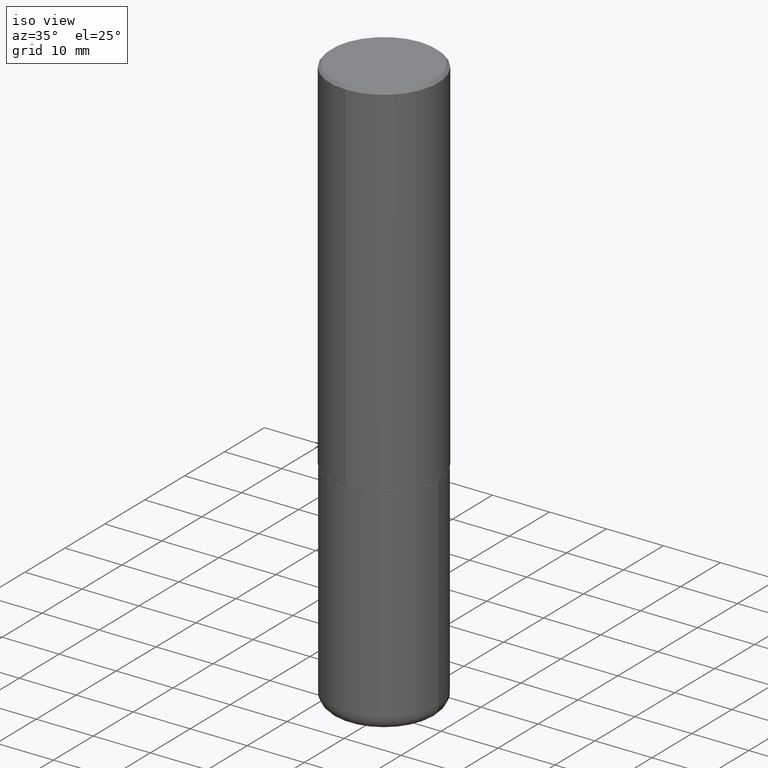
[diagram: clean part render]
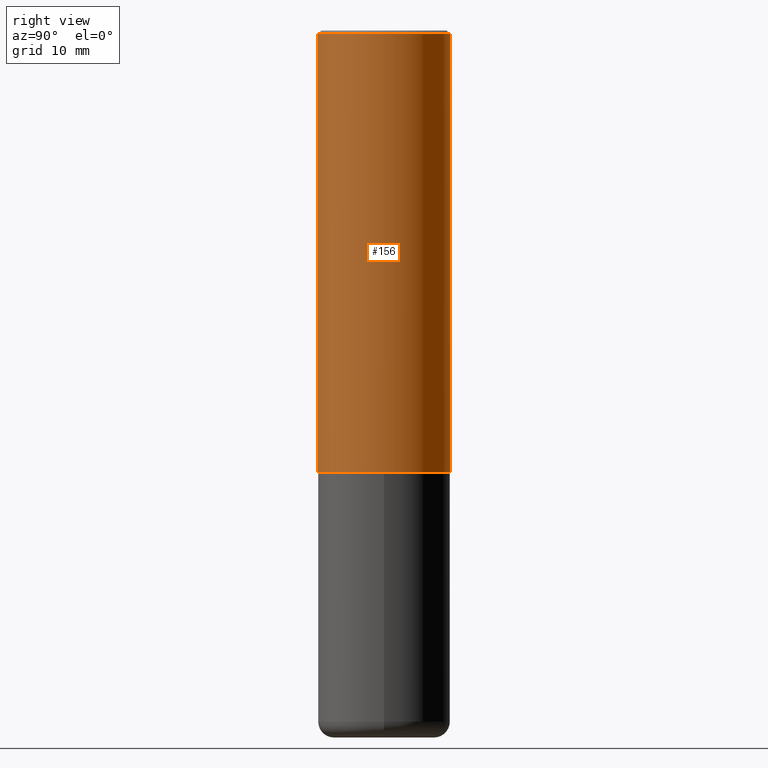
[diagram: tour spotlight — one face highlighted and labeled with its STEP entity id]
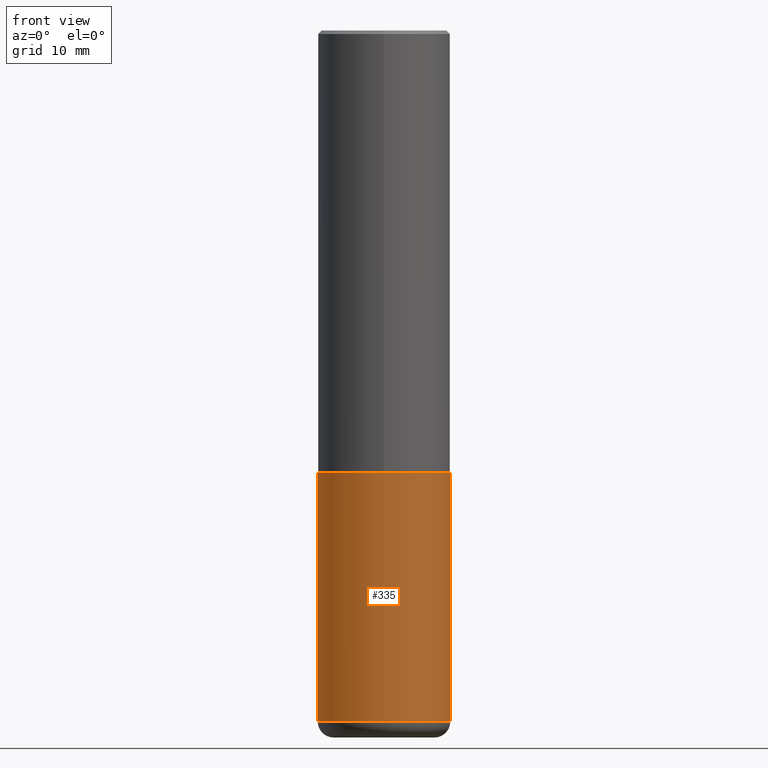
[diagram: tour spotlight — one face highlighted and labeled with its STEP entity id]
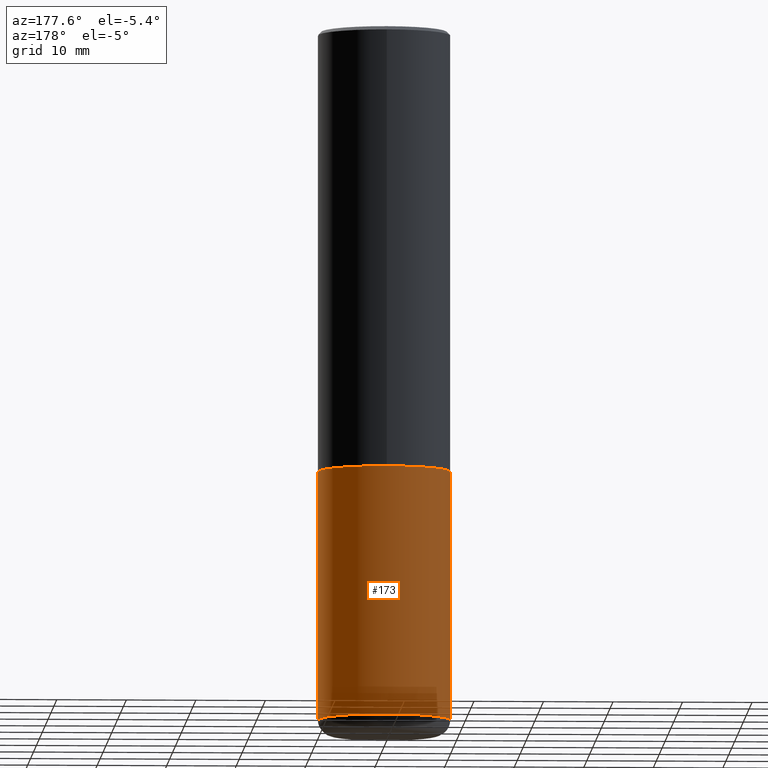
[diagram: tour spotlight — one face highlighted and labeled with its STEP entity id]
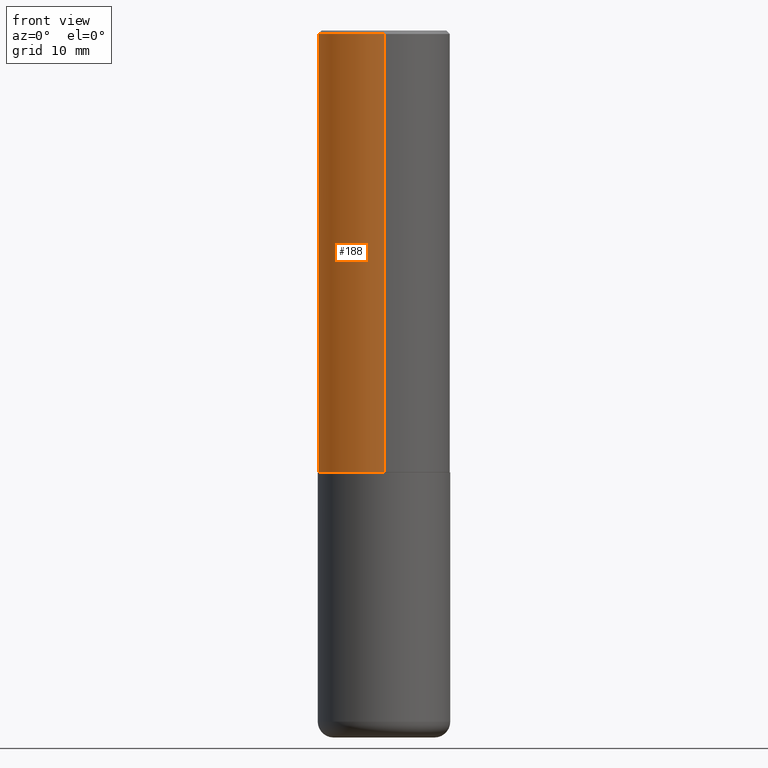
[diagram: tour spotlight — one face highlighted and labeled with its STEP entity id]
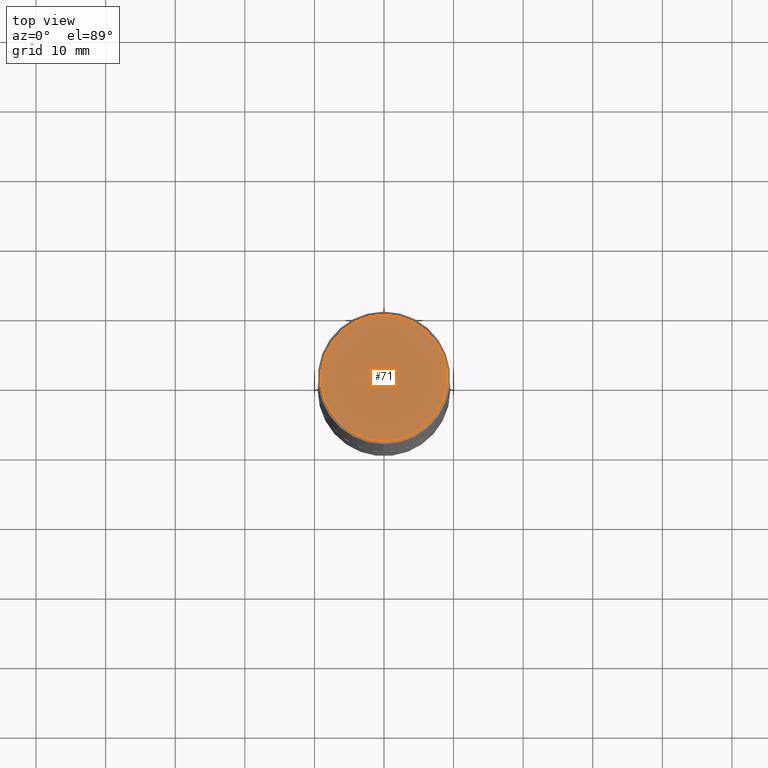
[diagram: tour spotlight — one face highlighted and labeled with its STEP entity id]
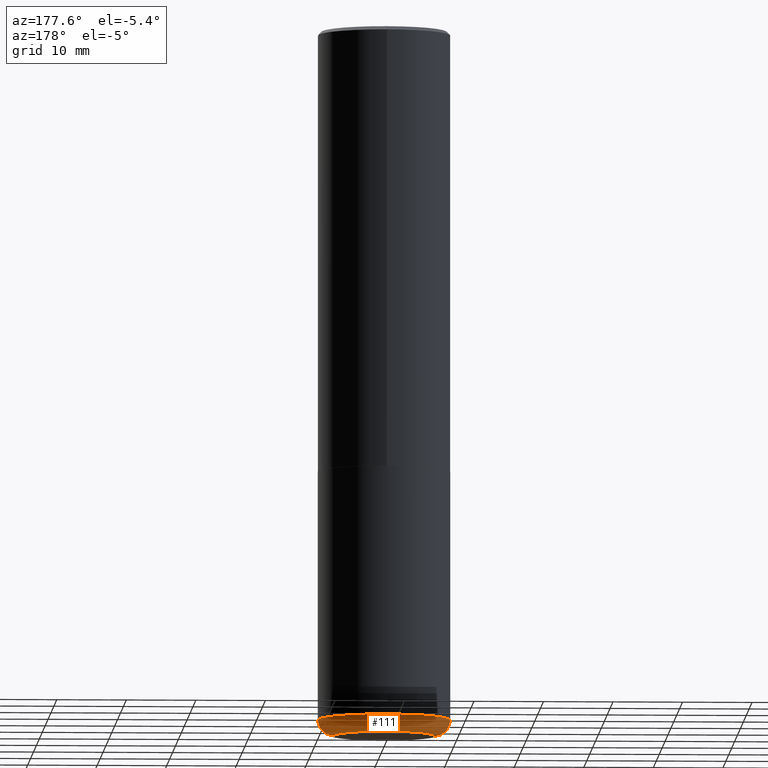
[diagram: tour spotlight — one face highlighted and labeled with its STEP entity id]
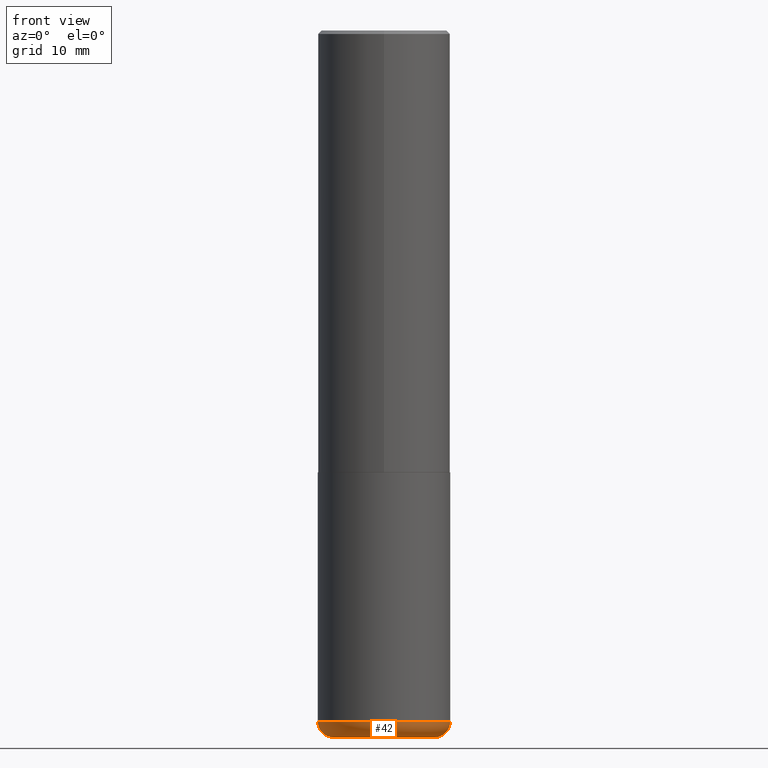
[diagram: tour spotlight — one face highlighted and labeled with its STEP entity id]
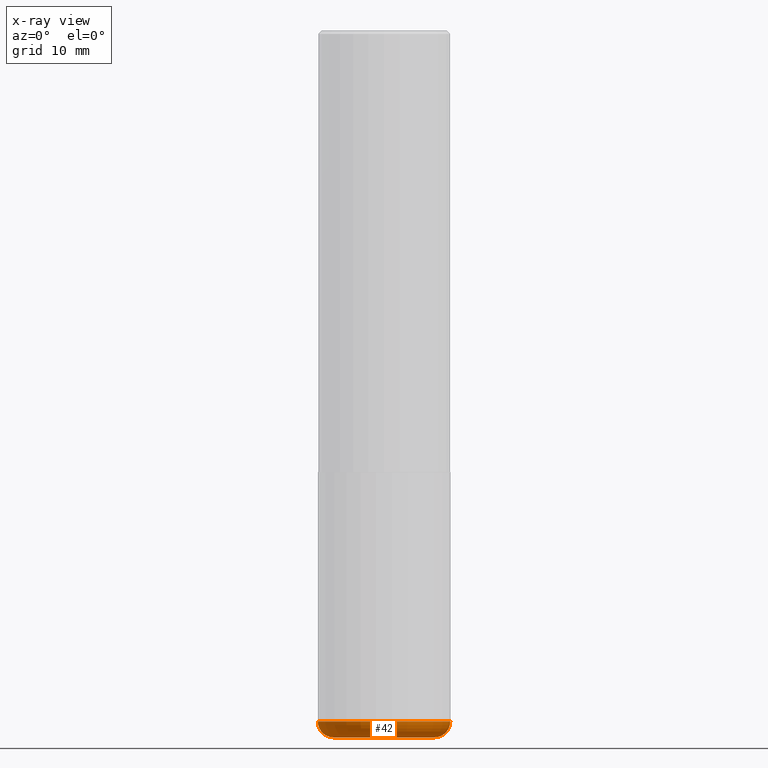
[diagram: x-ray of the same camera — body ghosted, this tour face saturated]
A machine part: a face-by-face anatomy tour. The part has 14 B-rep faces; the first image is the clean iso view, then the 7 largest visible faces are spotlighted one at a time (largest first), each with its STEP entity span.

Face 1 — right view, entity #156. In plain terms, the highlighted cylindrical surface (partial cylindrical patch) has radius 9.525 mm, axis along (-0, 0, 1).
Definition (entity closure, byte-faithful):
#11 = DIRECTION ( 'NONE',  ( -2.444465131706345255E-29, 3.492918657822378473E-15, 1.000000000000000000 ) ) ;
#33 = VERTEX_POINT ( 'NONE', #117 ) ;
#35 = ORIENTED_EDGE ( 'NONE', *, *, #244, .F. ) ;
#58 = ORIENTED_EDGE ( 'NONE', *, *, #360, .T. ) ;
#69 = CARTESIAN_POINT ( 'NONE',  ( -2.618611004132290852E-15, -0.3750000000000090483, -2.498999999999998778 ) ) ;
#72 = CIRCLE ( 'NONE', #132, 0.3750000000000000555 ) ;
#85 = EDGE_CURVE ( 'NONE', #206, #315, #267, .T. ) ;
#117 = CARTESIAN_POINT ( 'NONE',  ( -2.572686749164323547E-15, -0.3750000000000001110, -0.01999999999999877570 ) ) ;
#126 = CARTESIAN_POINT ( 'NONE',  ( 6.108718364134156127E-29, -8.728803725898123939E-15, -2.498999999999999666 ) ) ;
#132 = AXIS2_PLACEMENT_3D ( 'NONE', #296, #11, #327 ) ;
#134 = CYLINDRICAL_SURFACE ( 'NONE', #150, 0.3750000000000001665 ) ;
#138 = LINE ( 'NONE', #141, #183 ) ;
#141 = CARTESIAN_POINT ( 'NONE',  ( 2.664535259100376486E-15, 0.3750000000000001665, -1.309844496683392470E-15 ) ) ;
#150 = AXIS2_PLACEMENT_3D ( 'NONE', #226, #162, #164 ) ;
#156 = ADVANCED_FACE ( 'NONE', ( #397 ), #134, .T. ) ;
#160 = DIRECTION ( 'NONE',  ( -2.444465131706345255E-29, 3.492918657822378868E-15, 1.000000000000000000 ) ) ;
#162 = DIRECTION ( 'NONE',  ( -2.444465131706345255E-29, 3.492918657822378473E-15, 1.000000000000000000 ) ) ;
#164 = DIRECTION ( 'NONE',  ( -6.982962677686266711E-15, -1.000000000000000000, 3.492918657822378473E-15 ) ) ;
#179 = ORIENTED_EDGE ( 'NONE', *, *, #85, .T. ) ;
#181 = EDGE_CURVE ( 'NONE', #206, #33, #225, .T. ) ;
#183 = VECTOR ( 'NONE', #275, 39.37007874015748143 ) ;
#206 = VERTEX_POINT ( 'NONE', #69 ) ;
#209 = AXIS2_PLACEMENT_3D ( 'NONE', #126, #254, #382 ) ;
#225 = LINE ( 'NONE', #363, #346 ) ;
#226 = CARTESIAN_POINT ( 'NONE',  ( 0.000000000000000000, 0.000000000000000000, 0.000000000000000000 ) ) ;
#244 = EDGE_CURVE ( 'NONE', #33, #376, #72, .T. ) ;
#254 = DIRECTION ( 'NONE',  ( -2.444465131706345255E-29, 3.492918657822378473E-15, 1.000000000000000000 ) ) ;
#267 = CIRCLE ( 'NONE', #209, 0.3750000000000002776 ) ;
#272 = CARTESIAN_POINT ( 'NONE',  ( 2.618611004132350411E-15, 0.3749999999999999445, -0.02000000000000139513 ) ) ;
#275 = DIRECTION ( 'NONE',  ( -2.444465131706345255E-29, 3.492918657822378868E-15, 1.000000000000000000 ) ) ;
#277 = ORIENTED_EDGE ( 'NONE', *, *, #181, .F. ) ;
#296 = CARTESIAN_POINT ( 'NONE',  ( 4.888930263412711914E-31, -6.985837315644786578E-17, -0.02000000000000008715 ) ) ;
#312 = EDGE_LOOP ( 'NONE', ( #179, #58, #35, #277 ) ) ;
#315 = VERTEX_POINT ( 'NONE', #340 ) ;
#327 = DIRECTION ( 'NONE',  ( -6.982962677686265922E-15, -1.000000000000000000, 3.494488891895536035E-15 ) ) ;
#340 = CARTESIAN_POINT ( 'NONE',  ( 2.664535259100408040E-15, 0.3749999999999915623, -2.499000000000000998 ) ) ;
#346 = VECTOR ( 'NONE', #160, 39.37007874015748143 ) ;
#360 = EDGE_CURVE ( 'NONE', #315, #376, #138, .T. ) ;
#363 = CARTESIAN_POINT ( 'NONE',  ( -2.618611004132351200E-15, -0.3750000000000001665, 1.309844496683392470E-15 ) ) ;
#376 = VERTEX_POINT ( 'NONE', #272 ) ;
#382 = DIRECTION ( 'NONE',  ( -6.982962677686266711E-15, -1.000000000000000000, 2.913971193241878794E-15 ) ) ;
#397 = FACE_OUTER_BOUND ( 'NONE', #312, .T. ) ;

Face 2 — front view, entity #335. In plain terms, the highlighted cylindrical surface (partial cylindrical patch) has radius 9.525 mm, axis along (-0, 0, 1).
Definition (entity closure, byte-faithful):
#5 = CARTESIAN_POINT ( 'NONE',  ( 0.3750000000000000555, -1.134731435124021180E-14, -2.499999999999999556 ) ) ;
#9 = ORIENTED_EDGE ( 'NONE', *, *, #287, .F. ) ;
#18 = DIRECTION ( 'NONE',  ( -2.445468806185136877E-29, 3.491481338843145188E-15, 1.000000000000000000 ) ) ;
#21 = CYLINDRICAL_SURFACE ( 'NONE', #323, 0.3749999999999999445 ) ;
#37 = VERTEX_POINT ( 'NONE', #5 ) ;
#49 = CARTESIAN_POINT ( 'NONE',  ( 6.113672015462840371E-29, -8.728703347107863365E-15, -2.499999999999999556 ) ) ;
#55 = DIRECTION ( 'NONE',  ( 1.000000000000000000, -6.982962677686266711E-15, 4.876176775795935793E-29 ) ) ;
#67 = CIRCLE ( 'NONE', #347, 0.3749999999999999445 ) ;
#77 = EDGE_CURVE ( 'NONE', #170, #322, #67, .T. ) ;
#83 = CARTESIAN_POINT ( 'NONE',  ( 0.000000000000000000, 0.000000000000000000, 0.000000000000000000 ) ) ;
#105 = CARTESIAN_POINT ( 'NONE',  ( -0.3749999999999999445, -1.098715677577632652E-14, -3.910000000000000142 ) ) ;
#112 = DIRECTION ( 'NONE',  ( -2.445468806185136597E-29, 3.491481338843145583E-15, 1.000000000000000000 ) ) ;
#119 = DIRECTION ( 'NONE',  ( -2.445468806185136597E-29, 3.491481338843145583E-15, 1.000000000000000000 ) ) ;
#143 = LINE ( 'NONE', #167, #372 ) ;
#167 = CARTESIAN_POINT ( 'NONE',  ( -0.3749999999999999445, 2.664535259100375303E-15, -1.844600658845589318E-29 ) ) ;
#170 = VERTEX_POINT ( 'NONE', #105 ) ;
#171 = DIRECTION ( 'NONE',  ( -2.445468806185136877E-29, 3.491481338843145188E-15, 1.000000000000000000 ) ) ;
#204 = DIRECTION ( 'NONE',  ( 1.000000000000000000, -6.982962677686264344E-15, 0.000000000000000000 ) ) ;
#207 = DIRECTION ( 'NONE',  ( -2.445468806185136597E-29, 3.491481338843145583E-15, 1.000000000000000000 ) ) ;
#232 = ORIENTED_EDGE ( 'NONE', *, *, #77, .T. ) ;
#240 = ORIENTED_EDGE ( 'NONE', *, *, #276, .T. ) ;
#248 = DIRECTION ( 'NONE',  ( 1.000000000000000000, -6.982962677686263555E-15, 0.000000000000000000 ) ) ;
#270 = CARTESIAN_POINT ( 'NONE',  ( 0.3749999999999999445, -1.627030303900904751E-14, -3.910000000000000142 ) ) ;
#273 = ORIENTED_EDGE ( 'NONE', *, *, #302, .F. ) ;
#276 = EDGE_CURVE ( 'NONE', #322, #37, #364, .T. ) ;
#286 = CARTESIAN_POINT ( 'NONE',  ( 9.561783032183883600E-29, -1.365169203487670064E-14, -3.910000000000000142 ) ) ;
#287 = EDGE_CURVE ( 'NONE', #341, #37, #308, .T. ) ;
#291 = EDGE_LOOP ( 'NONE', ( #273, #232, #240, #9 ) ) ;
#302 = EDGE_CURVE ( 'NONE', #170, #341, #143, .T. ) ;
#304 = FACE_OUTER_BOUND ( 'NONE', #291, .T. ) ;
#308 = CIRCLE ( 'NONE', #385, 0.3750000000000000555 ) ;
#322 = VERTEX_POINT ( 'NONE', #270 ) ;
#323 = AXIS2_PLACEMENT_3D ( 'NONE', #83, #112, #55 ) ;
#331 = CARTESIAN_POINT ( 'NONE',  ( 0.3749999999999999445, -2.618611004132349622E-15, 1.828566290923475642E-29 ) ) ;
#335 = ADVANCED_FACE ( 'NONE', ( #304 ), #21, .T. ) ;
#341 = VERTEX_POINT ( 'NONE', #375 ) ;
#347 = AXIS2_PLACEMENT_3D ( 'NONE', #286, #119, #248 ) ;
#364 = LINE ( 'NONE', #331, #398 ) ;
#372 = VECTOR ( 'NONE', #171, 39.37007874015748143 ) ;
#375 = CARTESIAN_POINT ( 'NONE',  ( -0.3750000000000000555, -8.525662431891907096E-15, -2.499999999999999556 ) ) ;
#385 = AXIS2_PLACEMENT_3D ( 'NONE', #49, #207, #204 ) ;
#398 = VECTOR ( 'NONE', #18, 39.37007874015748143 ) ;

Face 3 — auxiliary view, entity #173. In plain terms, the highlighted cylindrical surface (partial cylindrical patch) has radius 9.525 mm, axis along (-0, 0, 1).
Definition (entity closure, byte-faithful):
#5 = CARTESIAN_POINT ( 'NONE',  ( 0.3750000000000000555, -1.134731435124021180E-14, -2.499999999999999556 ) ) ;
#14 = DIRECTION ( 'NONE',  ( 1.000000000000000000, -6.982962677686266711E-15, 4.876176775795935793E-29 ) ) ;
#18 = DIRECTION ( 'NONE',  ( -2.445468806185136877E-29, 3.491481338843145188E-15, 1.000000000000000000 ) ) ;
#37 = VERTEX_POINT ( 'NONE', #5 ) ;
#41 = CARTESIAN_POINT ( 'NONE',  ( 6.113672015462840371E-29, -8.728703347107863365E-15, -2.499999999999999556 ) ) ;
#44 = DIRECTION ( 'NONE',  ( 1.000000000000000000, -6.982962677686263555E-15, 0.000000000000000000 ) ) ;
#48 = ORIENTED_EDGE ( 'NONE', *, *, #139, .T. ) ;
#84 = ORIENTED_EDGE ( 'NONE', *, *, #302, .T. ) ;
#98 = CARTESIAN_POINT ( 'NONE',  ( 0.000000000000000000, 0.000000000000000000, 0.000000000000000000 ) ) ;
#105 = CARTESIAN_POINT ( 'NONE',  ( -0.3749999999999999445, -1.098715677577632652E-14, -3.910000000000000142 ) ) ;
#108 = DIRECTION ( 'NONE',  ( -2.445468806185136597E-29, 3.491481338843145583E-15, 1.000000000000000000 ) ) ;
#139 = EDGE_CURVE ( 'NONE', #322, #170, #251, .T. ) ;
#143 = LINE ( 'NONE', #167, #372 ) ;
#167 = CARTESIAN_POINT ( 'NONE',  ( -0.3749999999999999445, 2.664535259100375303E-15, -1.844600658845589318E-29 ) ) ;
#170 = VERTEX_POINT ( 'NONE', #105 ) ;
#171 = DIRECTION ( 'NONE',  ( -2.445468806185136877E-29, 3.491481338843145188E-15, 1.000000000000000000 ) ) ;
#173 = ADVANCED_FACE ( 'NONE', ( #369 ), #227, .T. ) ;
#191 = CIRCLE ( 'NONE', #316, 0.3750000000000000555 ) ;
#196 = DIRECTION ( 'NONE',  ( -2.445468806185136597E-29, 3.491481338843145583E-15, 1.000000000000000000 ) ) ;
#197 = CARTESIAN_POINT ( 'NONE',  ( 9.561783032183883600E-29, -1.365169203487670064E-14, -3.910000000000000142 ) ) ;
#203 = ORIENTED_EDGE ( 'NONE', *, *, #276, .F. ) ;
#224 = EDGE_CURVE ( 'NONE', #37, #341, #191, .T. ) ;
#227 = CYLINDRICAL_SURFACE ( 'NONE', #366, 0.3749999999999999445 ) ;
#230 = DIRECTION ( 'NONE',  ( -2.445468806185136597E-29, 3.491481338843145583E-15, 1.000000000000000000 ) ) ;
#251 = CIRCLE ( 'NONE', #354, 0.3749999999999999445 ) ;
#264 = DIRECTION ( 'NONE',  ( 1.000000000000000000, -6.982962677686264344E-15, 0.000000000000000000 ) ) ;
#270 = CARTESIAN_POINT ( 'NONE',  ( 0.3749999999999999445, -1.627030303900904751E-14, -3.910000000000000142 ) ) ;
#276 = EDGE_CURVE ( 'NONE', #322, #37, #364, .T. ) ;
#302 = EDGE_CURVE ( 'NONE', #170, #341, #143, .T. ) ;
#316 = AXIS2_PLACEMENT_3D ( 'NONE', #41, #108, #264 ) ;
#322 = VERTEX_POINT ( 'NONE', #270 ) ;
#331 = CARTESIAN_POINT ( 'NONE',  ( 0.3749999999999999445, -2.618611004132349622E-15, 1.828566290923475642E-29 ) ) ;
#341 = VERTEX_POINT ( 'NONE', #375 ) ;
#354 = AXIS2_PLACEMENT_3D ( 'NONE', #197, #230, #44 ) ;
#364 = LINE ( 'NONE', #331, #398 ) ;
#366 = AXIS2_PLACEMENT_3D ( 'NONE', #98, #196, #14 ) ;
#369 = FACE_OUTER_BOUND ( 'NONE', #412, .T. ) ;
#372 = VECTOR ( 'NONE', #171, 39.37007874015748143 ) ;
#375 = CARTESIAN_POINT ( 'NONE',  ( -0.3750000000000000555, -8.525662431891907096E-15, -2.499999999999999556 ) ) ;
#377 = ORIENTED_EDGE ( 'NONE', *, *, #224, .F. ) ;
#398 = VECTOR ( 'NONE', #18, 39.37007874015748143 ) ;
#412 = EDGE_LOOP ( 'NONE', ( #48, #84, #377, #203 ) ) ;

Face 4 — front view, entity #188. In plain terms, the highlighted cylindrical surface (partial cylindrical patch) has radius 9.525 mm, axis along (-0, 0, 1).
Definition (entity closure, byte-faithful):
#13 = FACE_OUTER_BOUND ( 'NONE', #314, .T. ) ;
#29 = DIRECTION ( 'NONE',  ( -2.444465131706345255E-29, 3.492918657822378473E-15, 1.000000000000000000 ) ) ;
#33 = VERTEX_POINT ( 'NONE', #117 ) ;
#46 = DIRECTION ( 'NONE',  ( -6.982962677686266711E-15, -1.000000000000000000, 3.492918657822378473E-15 ) ) ;
#50 = EDGE_CURVE ( 'NONE', #376, #33, #368, .T. ) ;
#68 = EDGE_CURVE ( 'NONE', #315, #206, #174, .T. ) ;
#69 = CARTESIAN_POINT ( 'NONE',  ( -2.618611004132290852E-15, -0.3750000000000090483, -2.498999999999998778 ) ) ;
#107 = AXIS2_PLACEMENT_3D ( 'NONE', #185, #29, #182 ) ;
#117 = CARTESIAN_POINT ( 'NONE',  ( -2.572686749164323547E-15, -0.3750000000000001110, -0.01999999999999877570 ) ) ;
#138 = LINE ( 'NONE', #141, #183 ) ;
#141 = CARTESIAN_POINT ( 'NONE',  ( 2.664535259100376486E-15, 0.3750000000000001665, -1.309844496683392470E-15 ) ) ;
#159 = ORIENTED_EDGE ( 'NONE', *, *, #68, .T. ) ;
#160 = DIRECTION ( 'NONE',  ( -2.444465131706345255E-29, 3.492918657822378868E-15, 1.000000000000000000 ) ) ;
#174 = CIRCLE ( 'NONE', #107, 0.3750000000000002776 ) ;
#181 = EDGE_CURVE ( 'NONE', #206, #33, #225, .T. ) ;
#182 = DIRECTION ( 'NONE',  ( -6.982962677686266711E-15, -1.000000000000000000, 2.913971193241878794E-15 ) ) ;
#183 = VECTOR ( 'NONE', #275, 39.37007874015748143 ) ;
#185 = CARTESIAN_POINT ( 'NONE',  ( 6.108718364134156127E-29, -8.728803725898123939E-15, -2.498999999999999666 ) ) ;
#188 = ADVANCED_FACE ( 'NONE', ( #13 ), #262, .T. ) ;
#192 = DIRECTION ( 'NONE',  ( -6.982962677686265922E-15, -1.000000000000000000, 3.494488891895536035E-15 ) ) ;
#194 = DIRECTION ( 'NONE',  ( -2.444465131706345255E-29, 3.492918657822378473E-15, 1.000000000000000000 ) ) ;
#200 = ORIENTED_EDGE ( 'NONE', *, *, #360, .F. ) ;
#206 = VERTEX_POINT ( 'NONE', #69 ) ;
#225 = LINE ( 'NONE', #363, #346 ) ;
#261 = AXIS2_PLACEMENT_3D ( 'NONE', #361, #318, #192 ) ;
#262 = CYLINDRICAL_SURFACE ( 'NONE', #266, 0.3750000000000001665 ) ;
#266 = AXIS2_PLACEMENT_3D ( 'NONE', #334, #194, #46 ) ;
#272 = CARTESIAN_POINT ( 'NONE',  ( 2.618611004132350411E-15, 0.3749999999999999445, -0.02000000000000139513 ) ) ;
#275 = DIRECTION ( 'NONE',  ( -2.444465131706345255E-29, 3.492918657822378868E-15, 1.000000000000000000 ) ) ;
#288 = ORIENTED_EDGE ( 'NONE', *, *, #50, .F. ) ;
#314 = EDGE_LOOP ( 'NONE', ( #200, #159, #339, #288 ) ) ;
#315 = VERTEX_POINT ( 'NONE', #340 ) ;
#318 = DIRECTION ( 'NONE',  ( -2.444465131706345255E-29, 3.492918657822378473E-15, 1.000000000000000000 ) ) ;
#334 = CARTESIAN_POINT ( 'NONE',  ( 0.000000000000000000, 0.000000000000000000, 0.000000000000000000 ) ) ;
#339 = ORIENTED_EDGE ( 'NONE', *, *, #181, .T. ) ;
#340 = CARTESIAN_POINT ( 'NONE',  ( 2.664535259100408040E-15, 0.3749999999999915623, -2.499000000000000998 ) ) ;
#346 = VECTOR ( 'NONE', #160, 39.37007874015748143 ) ;
#360 = EDGE_CURVE ( 'NONE', #315, #376, #138, .T. ) ;
#361 = CARTESIAN_POINT ( 'NONE',  ( 4.888930263412711914E-31, -6.985837315644786578E-17, -0.02000000000000008715 ) ) ;
#363 = CARTESIAN_POINT ( 'NONE',  ( -2.618611004132351200E-15, -0.3750000000000001665, 1.309844496683392470E-15 ) ) ;
#368 = CIRCLE ( 'NONE', #261, 0.3750000000000000555 ) ;
#376 = VERTEX_POINT ( 'NONE', #272 ) ;

Face 5 — top view, entity #71. In plain terms, the highlighted planar face has unit normal (0, -0, -1).
Definition (entity closure, byte-faithful):
#2 = VERTEX_POINT ( 'NONE', #284 ) ;
#71 = ADVANCED_FACE ( 'NONE', ( #149 ), #279, .F. ) ;
#74 = DIRECTION ( 'NONE',  ( -2.444465131706345255E-29, 3.492918657822378473E-15, 1.000000000000000000 ) ) ;
#79 = AXIS2_PLACEMENT_3D ( 'NONE', #152, #321, #417 ) ;
#87 = CIRCLE ( 'NONE', #145, 0.3549999999999999267 ) ;
#102 = CARTESIAN_POINT ( 'NONE',  ( -1.681949631662511627E-45, 2.403353262744440834E-31, 6.880644807923424831E-17 ) ) ;
#115 = EDGE_LOOP ( 'NONE', ( #353, #238 ) ) ;
#145 = AXIS2_PLACEMENT_3D ( 'NONE', #298, #362, #293 ) ;
#149 = FACE_OUTER_BOUND ( 'NONE', #115, .T. ) ;
#152 = CARTESIAN_POINT ( 'NONE',  ( 2.478951750578623815E-15, 0.3549999999999999267, -1.205582899487326820E-15 ) ) ;
#195 = EDGE_CURVE ( 'NONE', #373, #2, #87, .T. ) ;
#198 = EDGE_CURVE ( 'NONE', #2, #373, #228, .T. ) ;
#228 = CIRCLE ( 'NONE', #289, 0.3549999999999999267 ) ;
#238 = ORIENTED_EDGE ( 'NONE', *, *, #195, .T. ) ;
#268 = CARTESIAN_POINT ( 'NONE',  ( -2.504081769186608216E-15, -0.3549999999999999267, 1.308792571606178433E-15 ) ) ;
#279 = PLANE ( 'NONE',  #79 ) ;
#284 = CARTESIAN_POINT ( 'NONE',  ( 2.548781377355487113E-15, 0.3549999999999999267, -1.171179675447709813E-15 ) ) ;
#289 = AXIS2_PLACEMENT_3D ( 'NONE', #102, #74, #393 ) ;
#293 = DIRECTION ( 'NONE',  ( -6.982962677686265922E-15, -1.000000000000000000, 3.492918657822378079E-15 ) ) ;
#298 = CARTESIAN_POINT ( 'NONE',  ( -1.681949631662511627E-45, 2.403353262744440834E-31, 6.880644807923424831E-17 ) ) ;
#321 = DIRECTION ( 'NONE',  ( 2.444465131706344694E-29, -3.492918657822378868E-15, -1.000000000000000000 ) ) ;
#353 = ORIENTED_EDGE ( 'NONE', *, *, #198, .T. ) ;
#362 = DIRECTION ( 'NONE',  ( -2.444465131706345255E-29, 3.492918657822378473E-15, 1.000000000000000000 ) ) ;
#373 = VERTEX_POINT ( 'NONE', #268 ) ;
#393 = DIRECTION ( 'NONE',  ( -6.982962677686265922E-15, -1.000000000000000000, 3.492918657822378079E-15 ) ) ;
#417 = DIRECTION ( 'NONE',  ( 6.982962677686265922E-15, 1.000000000000000000, -3.492918657822378868E-15 ) ) ;

Face 6 — auxiliary view, entity #111. In plain terms, the highlighted toroidal blend (fillet) surface has major radius 7.239 mm and minor (blend) radius 2.286 mm.
Definition (entity closure, byte-faithful):
#15 = EDGE_CURVE ( 'NONE', #211, #322, #101, .T. ) ;
#16 = CARTESIAN_POINT ( 'NONE',  ( 0.2850000000000000311, -1.595606971851316740E-14, -4.000000000000000000 ) ) ;
#19 = ORIENTED_EDGE ( 'NONE', *, *, #390, .T. ) ;
#31 = DIRECTION ( 'NONE',  ( -6.982962677686266711E-15, -1.000000000000000000, 3.491481338843145583E-15 ) ) ;
#39 = TOROIDAL_SURFACE ( 'NONE', #326, 0.2850000000000000311, 0.08999999999999989952 ) ;
#44 = DIRECTION ( 'NONE',  ( 1.000000000000000000, -6.982962677686263555E-15, 0.000000000000000000 ) ) ;
#45 = EDGE_CURVE ( 'NONE', #211, #147, #310, .T. ) ;
#47 = CARTESIAN_POINT ( 'NONE',  ( -0.2850000000000000311, -1.162664523796041410E-14, -3.910000000000000142 ) ) ;
#59 = DIRECTION ( 'NONE',  ( -2.445468806185136597E-29, 3.491481338843145583E-15, 1.000000000000000000 ) ) ;
#93 = AXIS2_PLACEMENT_3D ( 'NONE', #47, #242, #169 ) ;
#95 = CARTESIAN_POINT ( 'NONE',  ( 9.561783032183883600E-29, -1.365169203487670064E-14, -3.910000000000000142 ) ) ;
#97 = DIRECTION ( 'NONE',  ( 1.000000000000000000, -6.982962677686266711E-15, 0.000000000000000000 ) ) ;
#101 = CIRCLE ( 'NONE', #202, 0.08999999999999992728 ) ;
#105 = CARTESIAN_POINT ( 'NONE',  ( -0.3749999999999999445, -1.098715677577632652E-14, -3.910000000000000142 ) ) ;
#111 = ADVANCED_FACE ( 'NONE', ( #389 ), #39, .T. ) ;
#139 = EDGE_CURVE ( 'NONE', #322, #170, #251, .T. ) ;
#147 = VERTEX_POINT ( 'NONE', #329 ) ;
#169 = DIRECTION ( 'NONE',  ( -1.000000000000000000, 7.105427357600996337E-15, 0.000000000000000000 ) ) ;
#170 = VERTEX_POINT ( 'NONE', #105 ) ;
#176 = ORIENTED_EDGE ( 'NONE', *, *, #139, .F. ) ;
#197 = CARTESIAN_POINT ( 'NONE',  ( 9.561783032183883600E-29, -1.365169203487670064E-14, -3.910000000000000142 ) ) ;
#202 = AXIS2_PLACEMENT_3D ( 'NONE', #413, #31, #217 ) ;
#211 = VERTEX_POINT ( 'NONE', #16 ) ;
#212 = EDGE_LOOP ( 'NONE', ( #374, #19, #176, #404 ) ) ;
#217 = DIRECTION ( 'NONE',  ( 1.000000000000000000, -6.982962677686273810E-15, 0.000000000000000000 ) ) ;
#219 = DIRECTION ( 'NONE',  ( -2.445468806185136597E-29, 3.491481338843145583E-15, 1.000000000000000000 ) ) ;
#221 = CIRCLE ( 'NONE', #93, 0.08999999999999992728 ) ;
#230 = DIRECTION ( 'NONE',  ( -2.445468806185136597E-29, 3.491481338843145583E-15, 1.000000000000000000 ) ) ;
#242 = DIRECTION ( 'NONE',  ( 7.105427357601001859E-15, 1.000000000000000000, -3.491481338843145583E-15 ) ) ;
#250 = CARTESIAN_POINT ( 'NONE',  ( 9.781875224740546387E-29, -1.396592535537258233E-14, -4.000000000000000000 ) ) ;
#251 = CIRCLE ( 'NONE', #354, 0.3749999999999999445 ) ;
#270 = CARTESIAN_POINT ( 'NONE',  ( 0.3749999999999999445, -1.627030303900904751E-14, -3.910000000000000142 ) ) ;
#310 = CIRCLE ( 'NONE', #332, 0.2850000000000000311 ) ;
#322 = VERTEX_POINT ( 'NONE', #270 ) ;
#326 = AXIS2_PLACEMENT_3D ( 'NONE', #95, #219, #359 ) ;
#329 = CARTESIAN_POINT ( 'NONE',  ( -0.2850000000000000311, -1.146401766711631116E-14, -4.000000000000000000 ) ) ;
#332 = AXIS2_PLACEMENT_3D ( 'NONE', #250, #59, #97 ) ;
#354 = AXIS2_PLACEMENT_3D ( 'NONE', #197, #230, #44 ) ;
#359 = DIRECTION ( 'NONE',  ( 1.000000000000000000, -6.982962677686263555E-15, 4.883557194083111219E-29 ) ) ;
#374 = ORIENTED_EDGE ( 'NONE', *, *, #45, .T. ) ;
#389 = FACE_OUTER_BOUND ( 'NONE', #212, .T. ) ;
#390 = EDGE_CURVE ( 'NONE', #147, #170, #221, .T. ) ;
#404 = ORIENTED_EDGE ( 'NONE', *, *, #15, .F. ) ;
#413 = CARTESIAN_POINT ( 'NONE',  ( 0.2850000000000000311, -1.564183639801728729E-14, -3.910000000000000142 ) ) ;

Face 7 — front view, entity #42. An x-ray twin of the same camera follows (body ghosted, this face saturated) — the face is partly hidden behind the body. In plain terms, the highlighted toroidal blend (fillet) surface has major radius 7.239 mm and minor (blend) radius 2.286 mm.
Definition (entity closure, byte-faithful):
#3 = EDGE_CURVE ( 'NONE', #147, #211, #127, .T. ) ;
#15 = EDGE_CURVE ( 'NONE', #211, #322, #101, .T. ) ;
#16 = CARTESIAN_POINT ( 'NONE',  ( 0.2850000000000000311, -1.595606971851316740E-14, -4.000000000000000000 ) ) ;
#31 = DIRECTION ( 'NONE',  ( -6.982962677686266711E-15, -1.000000000000000000, 3.491481338843145583E-15 ) ) ;
#42 = ADVANCED_FACE ( 'NONE', ( #256 ), #223, .T. ) ;
#47 = CARTESIAN_POINT ( 'NONE',  ( -0.2850000000000000311, -1.162664523796041410E-14, -3.910000000000000142 ) ) ;
#51 = ORIENTED_EDGE ( 'NONE', *, *, #15, .T. ) ;
#67 = CIRCLE ( 'NONE', #347, 0.3749999999999999445 ) ;
#77 = EDGE_CURVE ( 'NONE', #170, #322, #67, .T. ) ;
#90 = DIRECTION ( 'NONE',  ( -2.445468806185136597E-29, 3.491481338843145583E-15, 1.000000000000000000 ) ) ;
#93 = AXIS2_PLACEMENT_3D ( 'NONE', #47, #242, #169 ) ;
#94 = DIRECTION ( 'NONE',  ( 1.000000000000000000, -6.982962677686266711E-15, 0.000000000000000000 ) ) ;
#101 = CIRCLE ( 'NONE', #202, 0.08999999999999992728 ) ;
#105 = CARTESIAN_POINT ( 'NONE',  ( -0.3749999999999999445, -1.098715677577632652E-14, -3.910000000000000142 ) ) ;
#113 = EDGE_LOOP ( 'NONE', ( #234, #168, #51, #305 ) ) ;
#119 = DIRECTION ( 'NONE',  ( -2.445468806185136597E-29, 3.491481338843145583E-15, 1.000000000000000000 ) ) ;
#127 = CIRCLE ( 'NONE', #282, 0.2850000000000000311 ) ;
#147 = VERTEX_POINT ( 'NONE', #329 ) ;
#168 = ORIENTED_EDGE ( 'NONE', *, *, #3, .T. ) ;
#169 = DIRECTION ( 'NONE',  ( -1.000000000000000000, 7.105427357600996337E-15, 0.000000000000000000 ) ) ;
#170 = VERTEX_POINT ( 'NONE', #105 ) ;
#187 = CARTESIAN_POINT ( 'NONE',  ( 9.561783032183883600E-29, -1.365169203487670064E-14, -3.910000000000000142 ) ) ;
#202 = AXIS2_PLACEMENT_3D ( 'NONE', #413, #31, #217 ) ;
#211 = VERTEX_POINT ( 'NONE', #16 ) ;
#217 = DIRECTION ( 'NONE',  ( 1.000000000000000000, -6.982962677686273810E-15, 0.000000000000000000 ) ) ;
#221 = CIRCLE ( 'NONE', #93, 0.08999999999999992728 ) ;
#223 = TOROIDAL_SURFACE ( 'NONE', #387, 0.2850000000000000311, 0.08999999999999989952 ) ;
#234 = ORIENTED_EDGE ( 'NONE', *, *, #390, .F. ) ;
#242 = DIRECTION ( 'NONE',  ( 7.105427357601001859E-15, 1.000000000000000000, -3.491481338843145583E-15 ) ) ;
#248 = DIRECTION ( 'NONE',  ( 1.000000000000000000, -6.982962677686263555E-15, 0.000000000000000000 ) ) ;
#256 = FACE_OUTER_BOUND ( 'NONE', #113, .T. ) ;
#270 = CARTESIAN_POINT ( 'NONE',  ( 0.3749999999999999445, -1.627030303900904751E-14, -3.910000000000000142 ) ) ;
#282 = AXIS2_PLACEMENT_3D ( 'NONE', #357, #384, #94 ) ;
#286 = CARTESIAN_POINT ( 'NONE',  ( 9.561783032183883600E-29, -1.365169203487670064E-14, -3.910000000000000142 ) ) ;
#305 = ORIENTED_EDGE ( 'NONE', *, *, #77, .F. ) ;
#322 = VERTEX_POINT ( 'NONE', #270 ) ;
#329 = CARTESIAN_POINT ( 'NONE',  ( -0.2850000000000000311, -1.146401766711631116E-14, -4.000000000000000000 ) ) ;
#347 = AXIS2_PLACEMENT_3D ( 'NONE', #286, #119, #248 ) ;
#357 = CARTESIAN_POINT ( 'NONE',  ( 9.781875224740546387E-29, -1.396592535537258233E-14, -4.000000000000000000 ) ) ;
#384 = DIRECTION ( 'NONE',  ( -2.445468806185136597E-29, 3.491481338843145583E-15, 1.000000000000000000 ) ) ;
#387 = AXIS2_PLACEMENT_3D ( 'NONE', #187, #90, #391 ) ;
#390 = EDGE_CURVE ( 'NONE', #147, #170, #221, .T. ) ;
#391 = DIRECTION ( 'NONE',  ( 1.000000000000000000, -6.982962677686263555E-15, 4.883557194083111219E-29 ) ) ;
#413 = CARTESIAN_POINT ( 'NONE',  ( 0.2850000000000000311, -1.564183639801728729E-14, -3.910000000000000142 ) ) ;